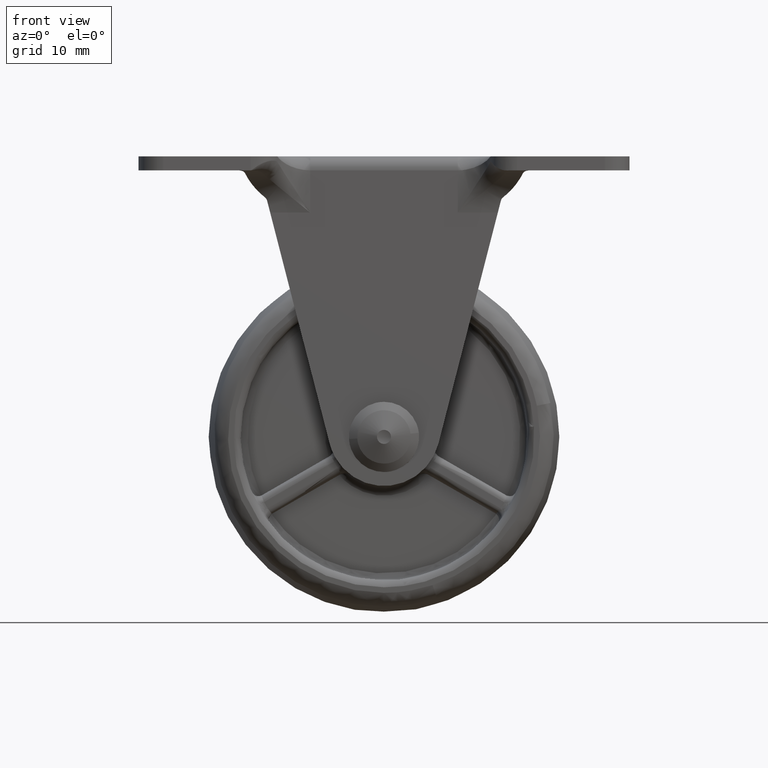
[diagram: clean part render]
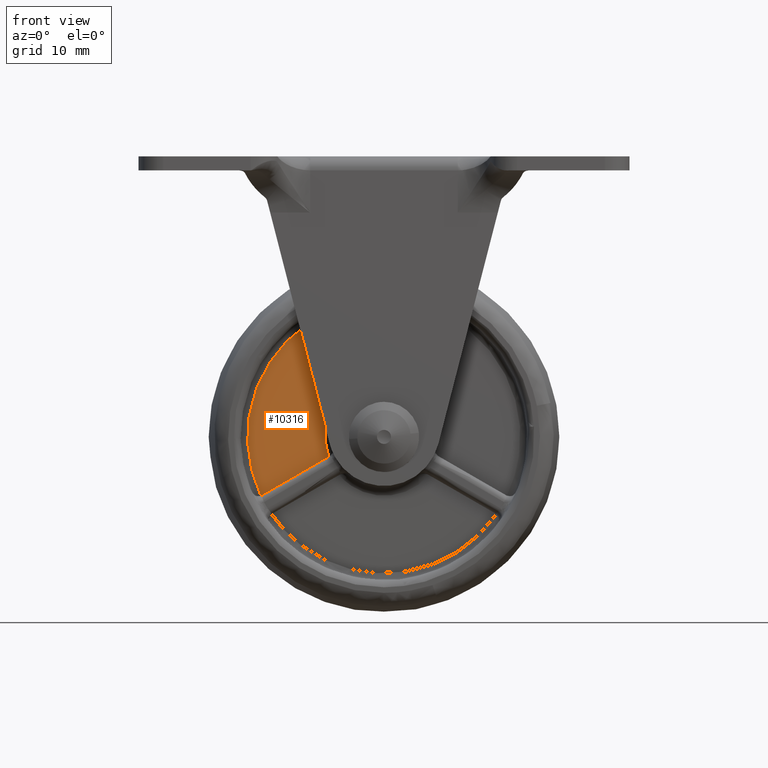
[diagram: same view with one face highlighted and labeled with its STEP entity id]
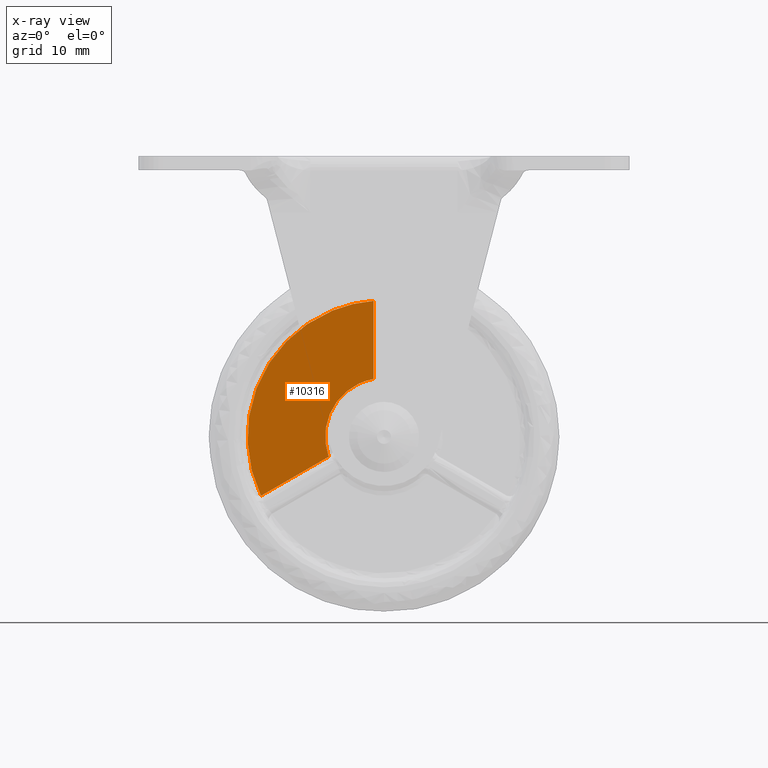
[diagram: x-ray of the same camera — body ghosted, the highlighted face saturated]
A machine part, front view. The second image highlights one B-rep face of the part: STEP entity #10316.
The next image is the same camera in x-ray: the body ghosted, the highlighted face saturated — about 0% of this face is hidden behind the body in this view.
In plain terms, the highlighted face is a freeform B-spline surface patch.
Its self-contained STEP definition (entity closure, byte-faithful):
#5307=CARTESIAN_POINT('',(-22.499992640299052,-5.500000000000000,-19.211339777635850));
#5308=VERTEX_POINT('',#5307);
#5309=CARTESIAN_POINT('',(-22.505311093836649,-5.500000000000000,-19.108341437340052));
#5310=VERTEX_POINT('',#5309);
#5311=CARTESIAN_POINT('',(-22.499992640299020,-5.500000000000000,-19.211339777635850));
#5312=CARTESIAN_POINT('',(-22.499992631030238,-5.500000000000000,-19.159703294369393));
#5313=CARTESIAN_POINT('',(-22.505311093836621,-5.500000000000000,-19.108341437340041));
#5321=(BOUNDED_CURVE()B_SPLINE_CURVE(2,(#5311,#5312,#5313),.UNSPECIFIED.,.F.,.U.)CURVE()GEOMETRIC_REPRESENTATION_ITEM()QUASI_UNIFORM_CURVE()RATIONAL_B_SPLINE_CURVE((1.0,0.998669496874251,1.0))REPRESENTATION_ITEM(''));
#5322=EDGE_CURVE('',#5308,#5310,#5321,.T.);
#6283=CARTESIAN_POINT('',(-38.546330964876098,-5.500000000000000,-46.892178082657601));
#6284=VERTEX_POINT('',#6283);
#6320=CARTESIAN_POINT('',(-38.454472154070949,-5.500000000000000,-46.845284686525197));
#6321=VERTEX_POINT('',#6320);
#6327=CARTESIAN_POINT('',(-38.546330964876063,-5.500000000000000,-46.892178082657672));
#6328=CARTESIAN_POINT('',(-38.499190849438442,-5.500000000000000,-46.871103027364697));
#6329=CARTESIAN_POINT('',(-38.454472154070963,-5.500000000000000,-46.845284686525190));
#6337=(BOUNDED_CURVE()B_SPLINE_CURVE(2,(#6327,#6328,#6329),.UNSPECIFIED.,.F.,.U.)CURVE()GEOMETRIC_REPRESENTATION_ITEM()QUASI_UNIFORM_CURVE()RATIONAL_B_SPLINE_CURVE((1.0,0.998669485900695,1.0))REPRESENTATION_ITEM(''));
#6338=EDGE_CURVE('',#6284,#6321,#6337,.T.);
#9599=CARTESIAN_POINT('',(-28.896632237382800,-5.500000000000000,-41.327065368394550));
#9600=VERTEX_POINT('',#9599);
#9601=CARTESIAN_POINT('',(-38.454472154070949,-5.500000000000000,-46.845284686525197));
#9602=CARTESIAN_POINT('',(-28.896632237382800,-5.500000000000000,-41.327065368394550));
#9603=QUASI_UNIFORM_CURVE('',1,(#9601,#9602),.UNSPECIFIED.,.F.,.U.);
#9604=EDGE_CURVE('',#6321,#9600,#9603,.T.);
#9851=CARTESIAN_POINT('',(-22.499994621345699,-5.500000000000000,-30.247781181671002));
#9852=VERTEX_POINT('',#9851);
#9853=CARTESIAN_POINT('',(-22.499992640299052,-5.500000000000000,-19.211339777635850));
#9854=CARTESIAN_POINT('',(-22.499994621345699,-5.500000000000000,-30.247781181671002));
#9855=QUASI_UNIFORM_CURVE('',1,(#9853,#9854),.UNSPECIFIED.,.F.,.U.);
#9856=EDGE_CURVE('',#5308,#9852,#9855,.T.);
#10241=CARTESIAN_POINT('',(-28.896632237382800,-5.500000000000000,-41.327065368394550));
#10242=CARTESIAN_POINT('',(-30.205850808489878,-5.500000000000001,-37.670122133206640));
#10243=CARTESIAN_POINT('',(-28.263730694559779,-5.500000000000000,-34.306276632089443));
#10244=CARTESIAN_POINT('',(-26.321610580629685,-5.500000000000001,-30.942431130972242));
#10245=CARTESIAN_POINT('',(-22.499994621345699,-5.500000000000000,-30.247781181671019));
#10253=(BOUNDED_CURVE()B_SPLINE_CURVE(2,(#10241,#10242,#10243,#10244,#10245),.UNSPECIFIED.,.F.,.U.)B_SPLINE_CURVE_WITH_KNOTS((3,2,3),(0.0,0.500000000000000,1.0),.UNSPECIFIED.)CURVE()GEOMETRIC_REPRESENTATION_ITEM()RATIONAL_B_SPLINE_CURVE((1.0,0.907418930199186,1.0,0.907418930199186,1.0))REPRESENTATION_ITEM(''));
#10254=EDGE_CURVE('',#9600,#9852,#10253,.T.);
#10289=CARTESIAN_POINT('',(-41.346179111245583,-5.500000000000000,-17.720538689205512));
#10290=CARTESIAN_POINT('',(-41.346179111245583,-5.500000000000000,-48.279979340351012));
#10291=CARTESIAN_POINT('',(-21.603409484381181,-5.500000000000000,-17.720538689205512));
#10292=CARTESIAN_POINT('',(-21.603409484381181,-5.500000000000000,-48.279979340351012));
#10293=B_SPLINE_SURFACE_WITH_KNOTS('',1,1,((#10289,#10291),(#10290,#10292)),.UNSPECIFIED.,.F.,.F.,.U.,(2,2),(2,2),(0.0,30.559440651145501),(0.0,19.742769626864401),.UNSPECIFIED.);
#10294=ORIENTED_EDGE('',*,*,#9856,.F.);
#10295=ORIENTED_EDGE('',*,*,#5322,.T.);
#10296=CARTESIAN_POINT('',(-38.546330964876113,-5.500000000000000,-46.892178082657622));
#10297=CARTESIAN_POINT('',(-42.967393295485060,-5.500000000000000,-37.648639384460054));
#10298=CARTESIAN_POINT('',(-37.844187750282003,-5.500000000000000,-28.774994995720640));
#10299=CARTESIAN_POINT('',(-32.720982205078954,-5.500000000000000,-19.901350606981239));
#10300=CARTESIAN_POINT('',(-22.505311093836649,-5.500000000000000,-19.108341437340091));
#10308=(BOUNDED_CURVE()B_SPLINE_CURVE(2,(#10296,#10297,#10298,#10299,#10300),.UNSPECIFIED.,.F.,.U.)B_SPLINE_CURVE_WITH_KNOTS((3,2,3),(0.0,0.500000000000000,1.0),.UNSPECIFIED.)CURVE()GEOMETRIC_REPRESENTATION_ITEM()RATIONAL_B_SPLINE_CURVE((1.0,0.884738859122142,1.0,0.884738859122142,1.0))REPRESENTATION_ITEM(''));
#10309=EDGE_CURVE('',#6284,#5310,#10308,.T.);
#10310=ORIENTED_EDGE('',*,*,#10309,.F.);
#10311=ORIENTED_EDGE('',*,*,#6338,.T.);
#10312=ORIENTED_EDGE('',*,*,#9604,.T.);
#10313=ORIENTED_EDGE('',*,*,#10254,.T.);
#10314=EDGE_LOOP('',(#10294,#10295,#10310,#10311,#10312,#10313));
#10315=FACE_OUTER_BOUND('',#10314,.T.);
#10316=ADVANCED_FACE('',(#10315),#10293,.T.);